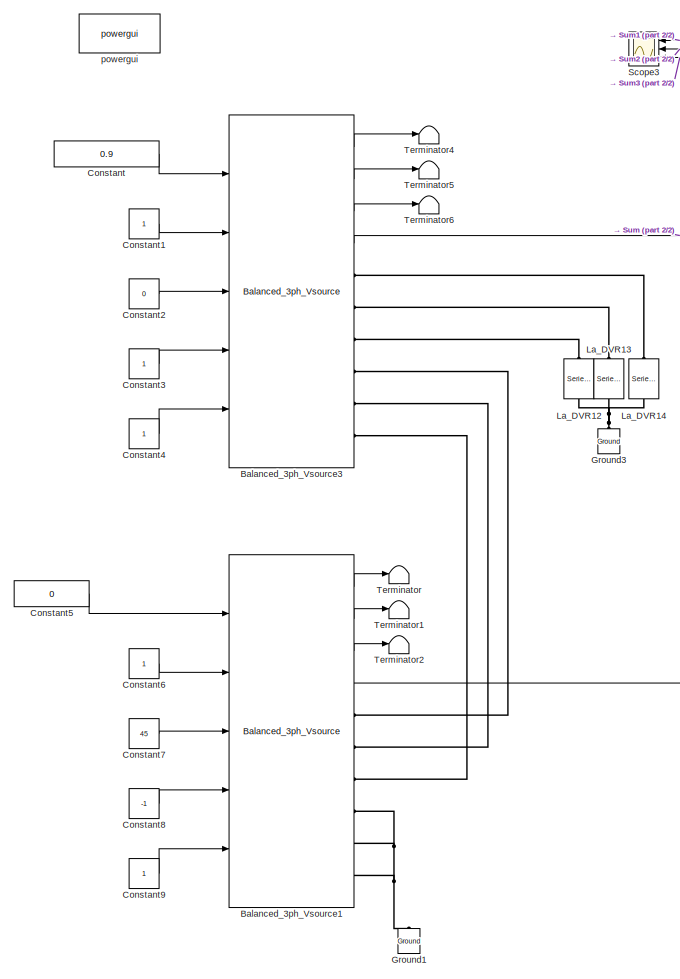
[diagram: root canvas - part 1/2, left side, full height]
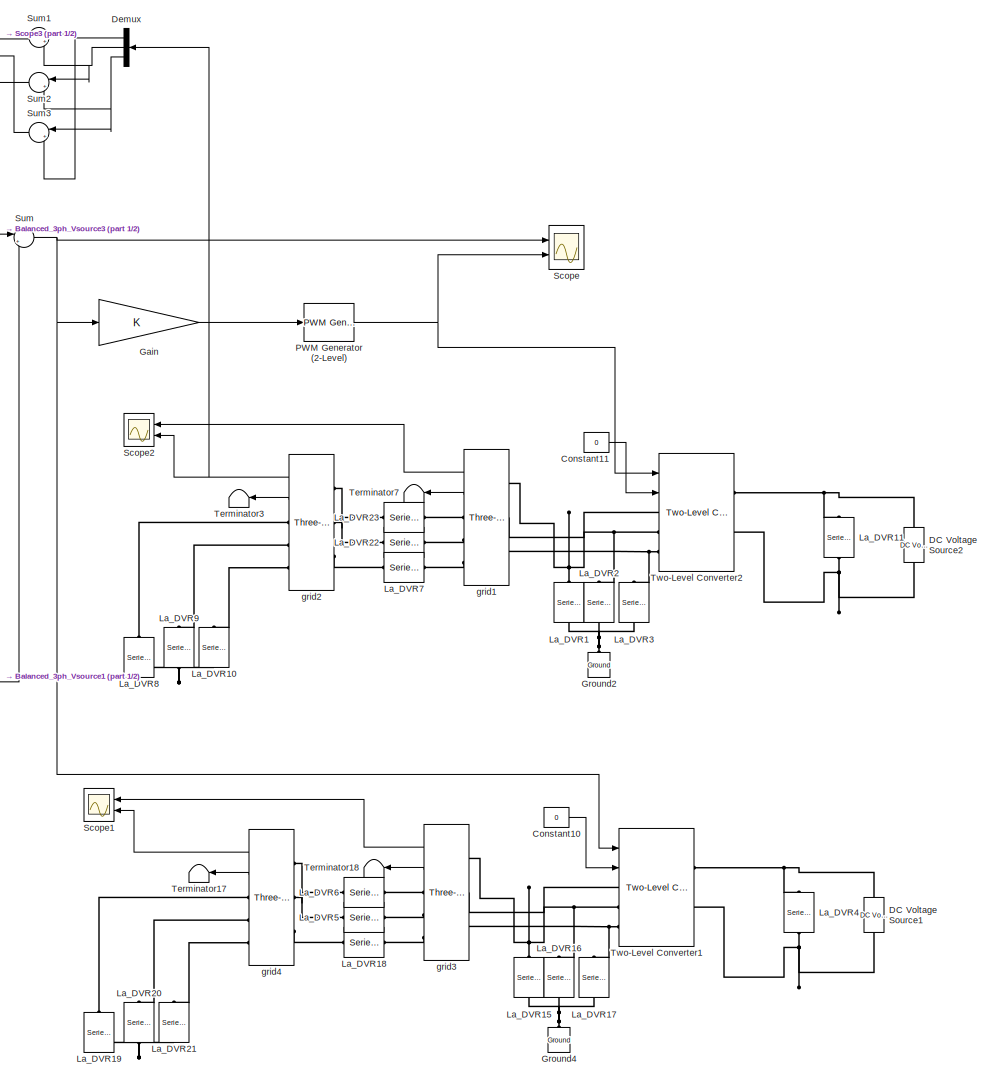
[diagram: root canvas - part 2/2, right side, full height]
MODEL slx_4e2f0f772b1d
KIND model
CONFIG AbsTol = auto
CONFIG EnableMultiTasking = off
CONFIG FixedStep = auto
CONFIG MaxStep = auto
CONFIG MinStep = auto
CONFIG RelTol = 1e-3
CONFIG SampleTimeConstraint = Unconstrained
CONFIG Solver = VariableStepAuto
CONFIG SolverName = VariableStepAuto
CONFIG StartTime = 0.0
CONFIG StopTime = 1
BLOCK [Reference] Balanced_3ph_Vsource1  REF=pwrsysVSrc_202301/Balanced_3ph_Vsource
  Ports = [5, 4, 0, 0, 0, 0, 6]
  SourceBlock = pwrsysVSrc_202301/Balanced_3ph_Vsource
  SourceType = Three-phase balanced voltage source
BLOCK [Reference] Balanced_3ph_Vsource3  REF=pwrsysVSrc_202301/Balanced_3ph_Vsource
  Ports = [5, 4, 0, 0, 0, 0, 6]
  SourceBlock = pwrsysVSrc_202301/Balanced_3ph_Vsource
  SourceType = Three-phase balanced voltage source
BLOCK [Constant] Constant
  Value = 0.9
BLOCK [Constant] Constant1
BLOCK [Constant] Constant10
  Value = 0
BLOCK [Constant] Constant11
  Value = 0
BLOCK [Constant] Constant2
  Value = 0
BLOCK [Constant] Constant3
BLOCK [Constant] Constant4
BLOCK [Constant] Constant5
  Value = 0
BLOCK [Constant] Constant6
BLOCK [Constant] Constant7
  Value = 45
BLOCK [Constant] Constant8
  Value = -1
BLOCK [Constant] Constant9
BLOCK [Reference] DC Voltage Source1  REF=powerlib/Electrical
Sources/DC Voltage Source
  Ports = [0, 0, 0, 0, 0, 1, 1]
  SourceBlock = powerlib/Electrical\nSources/DC Voltage Source
  SourceProductBaseCode = PS
  SourceProductName = Simscape Power Systems
  SourceType = DC Voltage Source
BLOCK [Reference] DC Voltage Source2  REF=powerlib/Electrical
Sources/DC Voltage Source
  Ports = [0, 0, 0, 0, 0, 1, 1]
  SourceBlock = powerlib/Electrical\nSources/DC Voltage Source
  SourceProductBaseCode = PS
  SourceProductName = Simscape Power Systems
  SourceType = DC Voltage Source
BLOCK [Demux] Demux
  DisplayOption = bar
  Outputs = 3
  Ports = [1, 3]
BLOCK [Gain] Gain
  OutDataTypeStr = Inherit: Inherit via internal rule
  ParamDataTypeStr = Inherit: Inherit via internal rule
  SaturateOnIntegerOverflow = off
BLOCK [Reference] Ground1  REF=powerlib/Elements/Ground
  Ports = [0, 0, 0, 0, 0, 1]
  SourceBlock = powerlib/Elements/Ground
  SourceProductBaseCode = PS
  SourceProductName = Simscape Power Systems
  SourceType = Ground
BLOCK [Reference] Ground2  REF=powerlib/Elements/Ground
  Ports = [0, 0, 0, 0, 0, 1]
  SourceBlock = powerlib/Elements/Ground
  SourceProductBaseCode = PS
  SourceProductName = Simscape Power Systems
  SourceType = Ground
BLOCK [Reference] Ground3  REF=powerlib/Elements/Ground
  Ports = [0, 0, 0, 0, 0, 1]
  SourceBlock = powerlib/Elements/Ground
  SourceProductBaseCode = PS
  SourceProductName = Simscape Power Systems
  SourceType = Ground
BLOCK [Reference] Ground4  REF=powerlib/Elements/Ground
  Ports = [0, 0, 0, 0, 0, 1]
  SourceBlock = powerlib/Elements/Ground
  SourceProductBaseCode = PS
  SourceProductName = Simscape Power Systems
  SourceType = Ground
BLOCK [Reference] La_DVR1  REF=powerlib/Elements/Series RLC Branch
  AttributesFormatString = \n
  Ports = [0, 0, 0, 0, 0, 1, 1]
  SourceBlock = powerlib/Elements/Series RLC Branch
  SourceProductBaseCode = PS
  SourceProductName = Simscape Power Systems
  SourceType = Series RLC Branch
BLOCK [Reference] La_DVR10  REF=powerlib/Elements/Series RLC Branch
  AttributesFormatString = \n
  Ports = [0, 0, 0, 0, 0, 1, 1]
  SourceBlock = powerlib/Elements/Series RLC Branch
  SourceProductBaseCode = PS
  SourceProductName = Simscape Power Systems
  SourceType = Series RLC Branch
BLOCK [Reference] La_DVR11  REF=powerlib/Elements/Series RLC Branch
  AttributesFormatString = \n
  Ports = [0, 0, 0, 0, 0, 1, 1]
  SourceBlock = powerlib/Elements/Series RLC Branch
  SourceProductBaseCode = PS
  SourceProductName = Simscape Power Systems
  SourceType = Series RLC Branch
BLOCK [Reference] La_DVR12  REF=powerlib/Elements/Series RLC Branch
  AttributesFormatString = \n
  Ports = [0, 0, 0, 0, 0, 1, 1]
  SourceBlock = powerlib/Elements/Series RLC Branch
  SourceProductBaseCode = PS
  SourceProductName = Simscape Power Systems
  SourceType = Series RLC Branch
BLOCK [Reference] La_DVR13  REF=powerlib/Elements/Series RLC Branch
  AttributesFormatString = \n
  Ports = [0, 0, 0, 0, 0, 1, 1]
  SourceBlock = powerlib/Elements/Series RLC Branch
  SourceProductBaseCode = PS
  SourceProductName = Simscape Power Systems
  SourceType = Series RLC Branch
BLOCK [Reference] La_DVR14  REF=powerlib/Elements/Series RLC Branch
  AttributesFormatString = \n
  Ports = [0, 0, 0, 0, 0, 1, 1]
  SourceBlock = powerlib/Elements/Series RLC Branch
  SourceProductBaseCode = PS
  SourceProductName = Simscape Power Systems
  SourceType = Series RLC Branch
BLOCK [Reference] La_DVR15  REF=powerlib/Elements/Series RLC Branch
  AttributesFormatString = \n
  Ports = [0, 0, 0, 0, 0, 1, 1]
  SourceBlock = powerlib/Elements/Series RLC Branch
  SourceProductBaseCode = PS
  SourceProductName = Simscape Power Systems
  SourceType = Series RLC Branch
BLOCK [Reference] La_DVR16  REF=powerlib/Elements/Series RLC Branch
  AttributesFormatString = \n
  Ports = [0, 0, 0, 0, 0, 1, 1]
  SourceBlock = powerlib/Elements/Series RLC Branch
  SourceProductBaseCode = PS
  SourceProductName = Simscape Power Systems
  SourceType = Series RLC Branch
BLOCK [Reference] La_DVR17  REF=powerlib/Elements/Series RLC Branch
  AttributesFormatString = \n
  Ports = [0, 0, 0, 0, 0, 1, 1]
  SourceBlock = powerlib/Elements/Series RLC Branch
  SourceProductBaseCode = PS
  SourceProductName = Simscape Power Systems
  SourceType = Series RLC Branch
BLOCK [Reference] La_DVR18  REF=powerlib/Elements/Series RLC Branch
  AttributesFormatString = \n
  Ports = [0, 0, 0, 0, 0, 1, 1]
  SourceBlock = powerlib/Elements/Series RLC Branch
  SourceProductBaseCode = PS
  SourceProductName = Simscape Power Systems
  SourceType = Series RLC Branch
BLOCK [Reference] La_DVR19  REF=powerlib/Elements/Series RLC Branch
  AttributesFormatString = \n
  Ports = [0, 0, 0, 0, 0, 1, 1]
  SourceBlock = powerlib/Elements/Series RLC Branch
  SourceProductBaseCode = PS
  SourceProductName = Simscape Power Systems
  SourceType = Series RLC Branch
BLOCK [Reference] La_DVR2  REF=powerlib/Elements/Series RLC Branch
  AttributesFormatString = \n
  Ports = [0, 0, 0, 0, 0, 1, 1]
  SourceBlock = powerlib/Elements/Series RLC Branch
  SourceProductBaseCode = PS
  SourceProductName = Simscape Power Systems
  SourceType = Series RLC Branch
BLOCK [Reference] La_DVR20  REF=powerlib/Elements/Series RLC Branch
  AttributesFormatString = \n
  Ports = [0, 0, 0, 0, 0, 1, 1]
  SourceBlock = powerlib/Elements/Series RLC Branch
  SourceProductBaseCode = PS
  SourceProductName = Simscape Power Systems
  SourceType = Series RLC Branch
BLOCK [Reference] La_DVR21  REF=powerlib/Elements/Series RLC Branch
  AttributesFormatString = \n
  Ports = [0, 0, 0, 0, 0, 1, 1]
  SourceBlock = powerlib/Elements/Series RLC Branch
  SourceProductBaseCode = PS
  SourceProductName = Simscape Power Systems
  SourceType = Series RLC Branch
BLOCK [Reference] La_DVR22  REF=powerlib/Elements/Series RLC Branch
  AttributesFormatString = \n
  Ports = [0, 0, 0, 0, 0, 1, 1]
  SourceBlock = powerlib/Elements/Series RLC Branch
  SourceProductBaseCode = PS
  SourceProductName = Simscape Power Systems
  SourceType = Series RLC Branch
BLOCK [Reference] La_DVR23  REF=powerlib/Elements/Series RLC Branch
  AttributesFormatString = \n
  Ports = [0, 0, 0, 0, 0, 1, 1]
  SourceBlock = powerlib/Elements/Series RLC Branch
  SourceProductBaseCode = PS
  SourceProductName = Simscape Power Systems
  SourceType = Series RLC Branch
BLOCK [Reference] La_DVR3  REF=powerlib/Elements/Series RLC Branch
  AttributesFormatString = \n
  Ports = [0, 0, 0, 0, 0, 1, 1]
  SourceBlock = powerlib/Elements/Series RLC Branch
  SourceProductBaseCode = PS
  SourceProductName = Simscape Power Systems
  SourceType = Series RLC Branch
BLOCK [Reference] La_DVR4  REF=powerlib/Elements/Series RLC Branch
  AttributesFormatString = \n
  Ports = [0, 0, 0, 0, 0, 1, 1]
  SourceBlock = powerlib/Elements/Series RLC Branch
  SourceProductBaseCode = PS
  SourceProductName = Simscape Power Systems
  SourceType = Series RLC Branch
BLOCK [Reference] La_DVR5  REF=powerlib/Elements/Series RLC Branch
  AttributesFormatString = \n
  Ports = [0, 0, 0, 0, 0, 1, 1]
  SourceBlock = powerlib/Elements/Series RLC Branch
  SourceProductBaseCode = PS
  SourceProductName = Simscape Power Systems
  SourceType = Series RLC Branch
BLOCK [Reference] La_DVR6  REF=powerlib/Elements/Series RLC Branch
  AttributesFormatString = \n
  Ports = [0, 0, 0, 0, 0, 1, 1]
  SourceBlock = powerlib/Elements/Series RLC Branch
  SourceProductBaseCode = PS
  SourceProductName = Simscape Power Systems
  SourceType = Series RLC Branch
BLOCK [Reference] La_DVR7  REF=powerlib/Elements/Series RLC Branch
  AttributesFormatString = \n
  Ports = [0, 0, 0, 0, 0, 1, 1]
  SourceBlock = powerlib/Elements/Series RLC Branch
  SourceProductBaseCode = PS
  SourceProductName = Simscape Power Systems
  SourceType = Series RLC Branch
BLOCK [Reference] La_DVR8  REF=powerlib/Elements/Series RLC Branch
  AttributesFormatString = \n
  Ports = [0, 0, 0, 0, 0, 1, 1]
  SourceBlock = powerlib/Elements/Series RLC Branch
  SourceProductBaseCode = PS
  SourceProductName = Simscape Power Systems
  SourceType = Series RLC Branch
BLOCK [Reference] La_DVR9  REF=powerlib/Elements/Series RLC Branch
  AttributesFormatString = \n
  Ports = [0, 0, 0, 0, 0, 1, 1]
  SourceBlock = powerlib/Elements/Series RLC Branch
  SourceProductBaseCode = PS
  SourceProductName = Simscape Power Systems
  SourceType = Series RLC Branch
BLOCK [Reference] PWM Generator (2-Level)  REF=powerlib_meascontrol/Pulse & Signal
Generators/PWM Generator
(2-Level)
  Ports = [1, 1]
  SourceBlock = powerlib_meascontrol/Pulse & Signal\nGenerators/PWM Generator\n(2-Level)
  SourceProductBaseCode = PS
  SourceProductName = Simscape Power Systems
  SourceType = PWM Generator (2-Level)
BLOCK [Scope] Scope
  Floating = off
  NumInputPorts = 2
  Ports = [2]
  ScopeSpecificationString = Simulink.scopes.TimeScopeBlockCfg('CurrentConfiguration', extmgr.ConfigurationSet(extmgr.Configuration('Core','General UI',true),extmgr.Configuration('Core','Source UI',true),extmgr.Configuration('Sources','WiredSimulink',true),extmgr.Configuration('Visuals','Time Domain',true,'SerializedDisplays',{struct('MinYLimReal','-1.1375','MaxYLimReal','1.2375','YLabelReal','','MinYLimMag','0.00000','MaxYLi...<+1533ch>
BLOCK [Scope] Scope1
  Floating = off
  NumInputPorts = 2
  Ports = [2]
  ScopeSpecificationString = Simulink.scopes.TimeScopeBlockCfg('CurrentConfiguration', extmgr.ConfigurationSet(extmgr.Configuration('Core','General UI',true),extmgr.Configuration('Core','Source UI',true),extmgr.Configuration('Sources','WiredSimulink',true,'DataLoggingVariableName','ScopeData1'),extmgr.Configuration('Visuals','Time Domain',true,'SerializedDisplays',{struct('MinYLimReal','-1.14294','MaxYLimReal','1.14294','YLab...<+1559ch>
BLOCK [Scope] Scope2
  Floating = off
  NumInputPorts = 2
  Ports = [2]
  ScopeSpecificationString = Simulink.scopes.TimeScopeBlockCfg('CurrentConfiguration', extmgr.ConfigurationSet(extmgr.Configuration('Core','General UI',true),extmgr.Configuration('Core','Source UI',true),extmgr.Configuration('Sources','WiredSimulink',true,'DataLoggingVariableName','ScopeData2'),extmgr.Configuration('Visuals','Time Domain',true,'SerializedDisplays',{struct('MinYLimReal','-1.57903','MaxYLimReal','1.59266','YLab...<+2260ch>
BLOCK [Scope] Scope3
  Floating = off
  NumInputPorts = 3
  Ports = [3]
  ScopeSpecificationString = Simulink.scopes.TimeScopeBlockCfg('CurrentConfiguration', extmgr.ConfigurationSet(extmgr.Configuration('Core','General UI',true),extmgr.Configuration('Core','Source UI',true),extmgr.Configuration('Sources','WiredSimulink',true,'DataLoggingVariableName','ScopeData3'),extmgr.Configuration('Visuals','Time Domain',true,'SerializedDisplays',{struct('MinYLimReal','-2.50001','MaxYLimReal','2.5','YLabelRe...<+1496ch>
BLOCK [Sum] Sum
  IconShape = round
  InputSameDT = off
  Inputs = |++
  OutDataTypeStr = Inherit: Inherit via internal rule
  Ports = [2, 1]
  SaturateOnIntegerOverflow = off
BLOCK [Sum] Sum1
  IconShape = round
  InputSameDT = off
  Inputs = |+-
  OutDataTypeStr = Inherit: Inherit via internal rule
  Ports = [2, 1]
  SaturateOnIntegerOverflow = off
BLOCK [Sum] Sum2
  IconShape = round
  InputSameDT = off
  Inputs = |+-
  OutDataTypeStr = Inherit: Inherit via internal rule
  Ports = [2, 1]
  SaturateOnIntegerOverflow = off
BLOCK [Sum] Sum3
  IconShape = round
  InputSameDT = off
  Inputs = |+-
  OutDataTypeStr = Inherit: Inherit via internal rule
  Ports = [2, 1]
  SaturateOnIntegerOverflow = off
BLOCK [Terminator] Terminator
BLOCK [Terminator] Terminator1
BLOCK [Terminator] Terminator17
BLOCK [Terminator] Terminator18
BLOCK [Terminator] Terminator2
BLOCK [Terminator] Terminator3
BLOCK [Terminator] Terminator4
BLOCK [Terminator] Terminator5
BLOCK [Terminator] Terminator6
BLOCK [Terminator] Terminator7
BLOCK [Reference] Two-Level Converter1  REF=powerlib/Power
Electronics/Two-Level Converter
  Ports = [2, 0, 0, 0, 0, 3, 2]
  SourceBlock = powerlib/Power\nElectronics/Two-Level Converter
  SourceProductBaseCode = PS
  SourceProductName = Simscape Power Systems
  SourceType = Two-Level Converter
BLOCK [Reference] Two-Level Converter2  REF=powerlib/Power
Electronics/Two-Level Converter
  Ports = [2, 0, 0, 0, 0, 3, 2]
  SourceBlock = powerlib/Power\nElectronics/Two-Level Converter
  SourceProductBaseCode = PS
  SourceProductName = Simscape Power Systems
  SourceType = Two-Level Converter
BLOCK [Reference] grid1  REF=powerlib/Measurements/Three-Phase
V-I Measurement
  Ports = [0, 2, 0, 0, 0, 3, 3]
  SourceBlock = powerlib/Measurements/Three-Phase\nV-I Measurement
  SourceProductBaseCode = PS
  SourceProductName = Simscape Power Systems
  SourceType = Three-Phase VI Measurement
BLOCK [Reference] grid2  REF=powerlib/Measurements/Three-Phase
V-I Measurement
  Ports = [0, 2, 0, 0, 0, 3, 3]
  SourceBlock = powerlib/Measurements/Three-Phase\nV-I Measurement
  SourceProductBaseCode = PS
  SourceProductName = Simscape Power Systems
  SourceType = Three-Phase VI Measurement
BLOCK [Reference] grid3  REF=powerlib/Measurements/Three-Phase
V-I Measurement
  Ports = [0, 2, 0, 0, 0, 3, 3]
  SourceBlock = powerlib/Measurements/Three-Phase\nV-I Measurement
  SourceProductBaseCode = PS
  SourceProductName = Simscape Power Systems
  SourceType = Three-Phase VI Measurement
BLOCK [Reference] grid4  REF=powerlib/Measurements/Three-Phase
V-I Measurement
  Ports = [0, 2, 0, 0, 0, 3, 3]
  SourceBlock = powerlib/Measurements/Three-Phase\nV-I Measurement
  SourceProductBaseCode = PS
  SourceProductName = Simscape Power Systems
  SourceType = Three-Phase VI Measurement
BLOCK [Reference] powergui  REF=powerlib/powergui
  Ports = []
  Priority = 1
  SourceBlock = powerlib/powergui
  SourceProductBaseCode = PS
  SourceProductName = Simscape Power Systems
  SourceType = PSB option menu block
LINE Balanced_3ph_Vsource1:1 -> Terminator:1
LINE Balanced_3ph_Vsource1:2 -> Terminator1:1
LINE Balanced_3ph_Vsource1:3 -> Terminator2:1
LINE Balanced_3ph_Vsource1:4 -> Sum:2
LINE Balanced_3ph_Vsource3:1 -> Terminator4:1
LINE Balanced_3ph_Vsource3:2 -> Terminator5:1
LINE Balanced_3ph_Vsource3:3 -> Terminator6:1
LINE Balanced_3ph_Vsource3:4 -> Sum:1
LINE Constant10:1 -> Two-Level Converter1:2
LINE Constant11:1 -> Two-Level Converter2:2
LINE Constant1:1 -> Balanced_3ph_Vsource3:2
LINE Constant2:1 -> Balanced_3ph_Vsource3:3
LINE Constant3:1 -> Balanced_3ph_Vsource3:4
LINE Constant4:1 -> Balanced_3ph_Vsource3:5
LINE Constant5:1 -> Balanced_3ph_Vsource1:1
LINE Constant6:1 -> Balanced_3ph_Vsource1:2
LINE Constant7:1 -> Balanced_3ph_Vsource1:3
LINE Constant8:1 -> Balanced_3ph_Vsource1:4
LINE Constant9:1 -> Balanced_3ph_Vsource1:5
LINE Constant:1 -> Balanced_3ph_Vsource3:1
NET Demux:1 -> Sum1:1, Sum3:2
NET Demux:2 -> Sum1:2, Sum2:1
NET Demux:3 -> Sum2:2, Sum3:1
LINE Gain:1 -> PWM Generator (2-Level):1
NET PWM Generator (2-Level):1 -> Scope:2, Two-Level Converter2:1
LINE Sum1:1 -> Scope3:1
LINE Sum2:1 -> Scope3:2
LINE Sum3:1 -> Scope3:3
NET Sum:1 -> Gain:1, Scope:1, Two-Level Converter1:1
LINE grid1:1 -> Scope2:1
LINE grid1:2 -> Terminator7:1
NET grid2:1 -> Demux:1, Scope2:2
LINE grid2:2 -> Terminator3:1
LINE grid3:1 -> Scope1:1
LINE grid3:2 -> Terminator18:1
LINE grid4:1 -> Scope1:2
LINE grid4:2 -> Terminator17:1
PLINE Balanced_3ph_Vsource1:RConn1 -- Balanced_3ph_Vsource3:RConn4
PLINE Balanced_3ph_Vsource1:RConn2 -- Balanced_3ph_Vsource3:RConn5
PLINE Balanced_3ph_Vsource1:RConn3 -- Balanced_3ph_Vsource3:RConn6
PNET net1: Balanced_3ph_Vsource1:RConn4 -- Balanced_3ph_Vsource1:RConn5 -- Balanced_3ph_Vsource1:RConn6 -- Ground1:LConn1
PLINE Balanced_3ph_Vsource3:RConn1 -- La_DVR14:RConn1
PLINE Balanced_3ph_Vsource3:RConn2 -- La_DVR13:RConn1
PLINE Balanced_3ph_Vsource3:RConn3 -- La_DVR12:RConn1
PNET net2: DC Voltage Source1:LConn1 -- La_DVR4:RConn1 -- Two-Level Converter1:RConn2
PNET net3: DC Voltage Source1:RConn1 -- La_DVR4:LConn1 -- Two-Level Converter1:RConn1
PNET net4: DC Voltage Source2:LConn1 -- La_DVR11:RConn1 -- Two-Level Converter2:RConn2
PNET net5: DC Voltage Source2:RConn1 -- La_DVR11:LConn1 -- Two-Level Converter2:RConn1
PNET net6: Ground2:LConn1 -- La_DVR1:LConn1 -- La_DVR2:LConn1 -- La_DVR3:LConn1
PNET net7: Ground3:LConn1 -- La_DVR12:LConn1 -- La_DVR13:LConn1 -- La_DVR14:LConn1
PNET net8: Ground4:LConn1 -- La_DVR15:LConn1 -- La_DVR16:LConn1 -- La_DVR17:LConn1
PNET net9: La_DVR10:LConn1 -- La_DVR8:LConn1 -- La_DVR9:LConn1
PLINE La_DVR10:RConn1 -- grid2:RConn3
PNET net10: La_DVR15:RConn1 -- Two-Level Converter1:LConn1 -- grid3:LConn1
PNET net11: La_DVR16:RConn1 -- Two-Level Converter1:LConn2 -- grid3:LConn2
PNET net12: La_DVR17:RConn1 -- Two-Level Converter1:LConn3 -- grid3:LConn3
PLINE La_DVR18:LConn1 -- grid3:RConn3
PLINE La_DVR18:RConn1 -- grid4:LConn3
PNET net13: La_DVR19:LConn1 -- La_DVR20:LConn1 -- La_DVR21:LConn1
PLINE La_DVR19:RConn1 -- grid4:RConn1
PNET net14: La_DVR1:RConn1 -- Two-Level Converter2:LConn1 -- grid1:LConn1
PLINE La_DVR20:RConn1 -- grid4:RConn2
PLINE La_DVR21:RConn1 -- grid4:RConn3
PLINE La_DVR22:LConn1 -- grid1:RConn2
PLINE La_DVR22:RConn1 -- grid2:LConn2
PLINE La_DVR23:LConn1 -- grid1:RConn1
PLINE La_DVR23:RConn1 -- grid2:LConn1
PNET net15: La_DVR2:RConn1 -- Two-Level Converter2:LConn2 -- grid1:LConn2
PNET net16: La_DVR3:RConn1 -- Two-Level Converter2:LConn3 -- grid1:LConn3
PLINE La_DVR5:LConn1 -- grid3:RConn2
PLINE La_DVR5:RConn1 -- grid4:LConn2
PLINE La_DVR6:LConn1 -- grid3:RConn1
PLINE La_DVR6:RConn1 -- grid4:LConn1
PLINE La_DVR7:LConn1 -- grid1:RConn3
PLINE La_DVR7:RConn1 -- grid2:LConn3
PLINE La_DVR8:RConn1 -- grid2:RConn1
PLINE La_DVR9:RConn1 -- grid2:RConn2
note: NET lines group one-source signal fan-out (src -> all destinations, sorted); 1:1 wires keep LINE; PNET lines group multi-terminal physical nets as a canonical sorted terminal list (undirected conserving connections); 2-terminal nets keep the pairwise PLINE form
